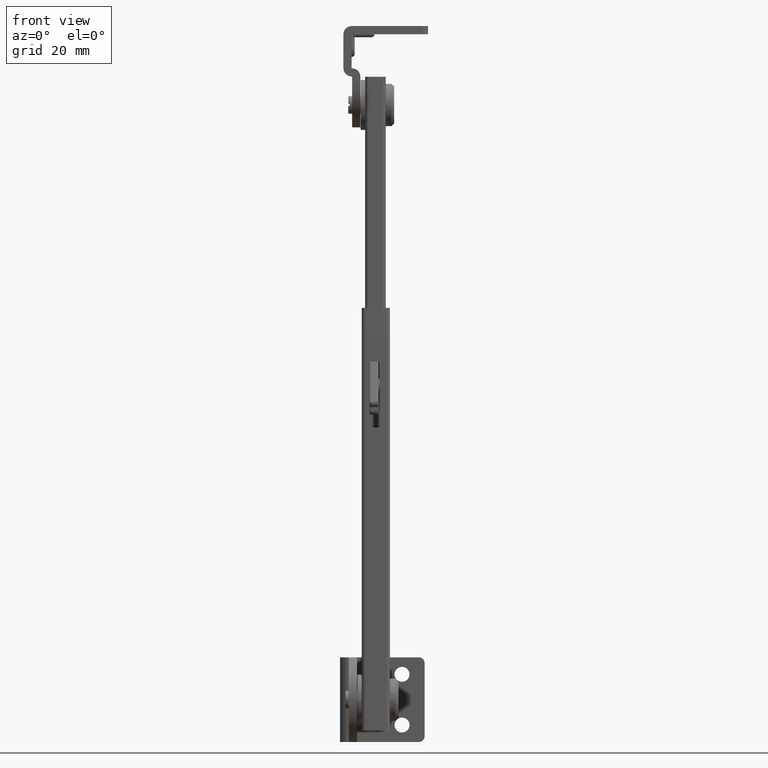
[diagram: clean part render]
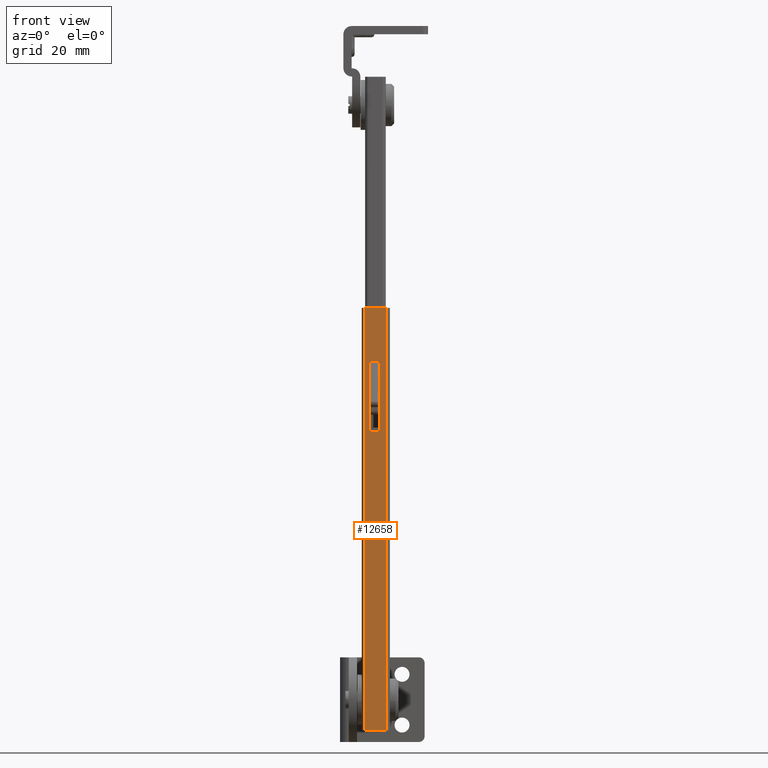
[diagram: same view with one face highlighted and labeled with its STEP entity id]
A machine part, front view. The second image highlights one B-rep face of the part: STEP entity #12658.
In plain terms, the highlighted face is a freeform B-spline surface patch.
Its self-contained STEP definition (entity closure, byte-faithful):
#11919=CARTESIAN_POINT('',(-7.300003000000080,-11.0,96.000000157079597));
#11920=VERTEX_POINT('',#11919);
#11926=CARTESIAN_POINT('',(-6.300003000000091,-11.0,95.0));
#11927=VERTEX_POINT('',#11926);
#11928=CARTESIAN_POINT('',(-7.300003000000078,-11.0,96.000000157079597));
#11929=CARTESIAN_POINT('',(-7.300003065064587,-11.000000000000005,95.585786548698962));
#11930=CARTESIAN_POINT('',(-7.007109836722661,-11.0,95.292893274349481));
#11931=CARTESIAN_POINT('',(-6.714216608380736,-11.000000000000005,95.0));
#11932=CARTESIAN_POINT('',(-6.300003000000091,-11.0,95.0));
#11940=(BOUNDED_CURVE()B_SPLINE_CURVE(2,(#11928,#11929,#11930,#11931,#11932),.UNSPECIFIED.,.F.,.U.)B_SPLINE_CURVE_WITH_KNOTS((3,2,3),(0.0,0.500000000000000,1.0),.UNSPECIFIED.)CURVE()GEOMETRIC_REPRESENTATION_ITEM()RATIONAL_B_SPLINE_CURVE((1.0,0.923879517483346,1.0,0.923879517483346,1.0))REPRESENTATION_ITEM(''));
#11941=EDGE_CURVE('',#11920,#11927,#11940,.T.);
#11981=CARTESIAN_POINT('',(-4.600006052359970,-11.0,95.0));
#11982=VERTEX_POINT('',#11981);
#11983=CARTESIAN_POINT('',(-4.600006052359970,-11.0,95.0));
#11984=CARTESIAN_POINT('',(-6.300003000000091,-11.0,95.0));
#11985=QUASI_UNIFORM_CURVE('',1,(#11983,#11984),.UNSPECIFIED.,.F.,.U.);
#11986=EDGE_CURVE('',#11982,#11927,#11985,.T.);
#12011=CARTESIAN_POINT('',(-3.600006000000095,-11.0,96.0));
#12012=VERTEX_POINT('',#12011);
#12013=CARTESIAN_POINT('',(-4.600006052359970,-11.0,95.0));
#12014=CARTESIAN_POINT('',(-4.185792474651023,-10.999999999999996,94.999999978311834));
#12015=CARTESIAN_POINT('',(-3.892899237325556,-11.0,95.292893200301449));
#12016=CARTESIAN_POINT('',(-3.600006000000091,-10.999999999999996,95.585786422291051));
#12017=CARTESIAN_POINT('',(-3.600006000000091,-11.0,96.0));
#12025=(BOUNDED_CURVE()B_SPLINE_CURVE(2,(#12013,#12014,#12015,#12016,#12017),.UNSPECIFIED.,.F.,.U.)B_SPLINE_CURVE_WITH_KNOTS((3,2,3),(0.0,0.500000000000000,1.0),.UNSPECIFIED.)CURVE()GEOMETRIC_REPRESENTATION_ITEM()RATIONAL_B_SPLINE_CURVE((1.0,0.923879527501972,1.0,0.923879527501972,1.0))REPRESENTATION_ITEM(''));
#12026=EDGE_CURVE('',#11982,#12012,#12025,.T.);
#12066=CARTESIAN_POINT('',(-3.600006000000091,-11.0,119.0));
#12067=VERTEX_POINT('',#12066);
#12068=CARTESIAN_POINT('',(-3.600006000000091,-11.0,119.0));
#12069=CARTESIAN_POINT('',(-3.600006000000095,-11.0,96.0));
#12070=QUASI_UNIFORM_CURVE('',1,(#12068,#12069),.UNSPECIFIED.,.F.,.U.);
#12071=EDGE_CURVE('',#12067,#12012,#12070,.T.);
#12096=CARTESIAN_POINT('',(-4.600006000000090,-11.0,120.0));
#12097=VERTEX_POINT('',#12096);
#12098=CARTESIAN_POINT('',(-3.600006000000091,-11.0,119.0));
#12099=CARTESIAN_POINT('',(-3.600006000000092,-11.0,120.0));
#12100=CARTESIAN_POINT('',(-4.600006000000090,-11.0,120.0));
#12108=(BOUNDED_CURVE()B_SPLINE_CURVE(2,(#12098,#12099,#12100),.UNSPECIFIED.,.F.,.U.)CURVE()GEOMETRIC_REPRESENTATION_ITEM()QUASI_UNIFORM_CURVE()RATIONAL_B_SPLINE_CURVE((1.0,0.707106781186548,1.0))REPRESENTATION_ITEM(''));
#12109=EDGE_CURVE('',#12067,#12097,#12108,.T.);
#12147=CARTESIAN_POINT('',(-6.300003052359970,-11.0,120.0));
#12148=VERTEX_POINT('',#12147);
#12149=CARTESIAN_POINT('',(-6.300003052359970,-11.0,120.0));
#12150=CARTESIAN_POINT('',(-4.600006000000090,-11.0,120.0));
#12151=QUASI_UNIFORM_CURVE('',1,(#12149,#12150),.UNSPECIFIED.,.F.,.U.);
#12152=EDGE_CURVE('',#12148,#12097,#12151,.T.);
#12177=CARTESIAN_POINT('',(-7.300003000000091,-11.0,118.999999912733400));
#12178=VERTEX_POINT('',#12177);
#12179=CARTESIAN_POINT('',(-6.300003052359970,-11.0,120.0));
#12180=CARTESIAN_POINT('',(-6.714216624957005,-10.999999999999998,119.999999978311860));
#12181=CARTESIAN_POINT('',(-7.007109830552050,-11.0,119.707106731821100));
#12182=CARTESIAN_POINT('',(-7.300003036147096,-10.999999999999998,119.414213485330480));
#12183=CARTESIAN_POINT('',(-7.300003000000087,-11.0,118.999999912733400));
#12191=(BOUNDED_CURVE()B_SPLINE_CURVE(2,(#12179,#12180,#12181,#12182,#12183),.UNSPECIFIED.,.F.,.U.)B_SPLINE_CURVE_WITH_KNOTS((3,2,3),(0.0,0.500000000000000,1.0),.UNSPECIFIED.)CURVE()GEOMETRIC_REPRESENTATION_ITEM()RATIONAL_B_SPLINE_CURVE((1.0,0.923879529171731,1.0,0.923879529171731,1.0))REPRESENTATION_ITEM(''));
#12192=EDGE_CURVE('',#12148,#12178,#12191,.T.);
#12230=CARTESIAN_POINT('',(-7.300003000000080,-11.0,96.000000157079597));
#12231=CARTESIAN_POINT('',(-7.300003000000091,-11.0,118.999999912733400));
#12232=QUASI_UNIFORM_CURVE('',1,(#12230,#12231),.UNSPECIFIED.,.F.,.U.);
#12233=EDGE_CURVE('',#11920,#12178,#12232,.T.);
#12244=CARTESIAN_POINT('',(-1.197313720102792,-11.0,139.0));
#12245=VERTEX_POINT('',#12244);
#12246=CARTESIAN_POINT('',(-8.800003062831941,-11.000003000000000,139.0));
#12247=VERTEX_POINT('',#12246);
#12248=CARTESIAN_POINT('',(-1.197313720102792,-11.0,139.0));
#12249=CARTESIAN_POINT('',(-8.800003062831941,-11.000003000000000,139.0));
#12250=QUASI_UNIFORM_CURVE('',1,(#12248,#12249),.UNSPECIFIED.,.F.,.U.);
#12251=EDGE_CURVE('',#12245,#12247,#12250,.T.);
#12370=CARTESIAN_POINT('',(-1.197313720102792,-11.0,-11.0));
#12371=VERTEX_POINT('',#12370);
#12372=CARTESIAN_POINT('',(-8.800003062831941,-11.000003000000000,-11.0));
#12373=VERTEX_POINT('',#12372);
#12374=CARTESIAN_POINT('',(-1.197313720102792,-11.0,-11.0));
#12375=CARTESIAN_POINT('',(-8.800003062831941,-11.000003000000000,-11.0));
#12376=QUASI_UNIFORM_CURVE('',1,(#12374,#12375),.UNSPECIFIED.,.F.,.U.);
#12377=EDGE_CURVE('',#12371,#12373,#12376,.T.);
#12506=CARTESIAN_POINT('',(-1.197313720102792,-11.0,-11.0));
#12507=CARTESIAN_POINT('',(-1.197313720102792,-11.0,139.0));
#12508=QUASI_UNIFORM_CURVE('',1,(#12506,#12507),.UNSPECIFIED.,.F.,.U.);
#12509=EDGE_CURVE('',#12371,#12245,#12508,.T.);
#12599=CARTESIAN_POINT('',(-8.800003062831941,-11.000003000000000,-11.0));
#12600=CARTESIAN_POINT('',(-8.800003062831941,-11.000003000000000,139.0));
#12601=QUASI_UNIFORM_CURVE('',1,(#12599,#12600),.UNSPECIFIED.,.F.,.U.);
#12602=EDGE_CURVE('',#12373,#12247,#12601,.T.);
#12637=CARTESIAN_POINT('',(-9.179757380765775,-11.0,-18.492499709270898));
#12638=CARTESIAN_POINT('',(-9.179757380765775,-11.0,146.492503732584400));
#12639=CARTESIAN_POINT('',(-0.817559198248939,-11.0,-18.492499709270898));
#12640=CARTESIAN_POINT('',(-0.817559198248939,-11.0,146.492503732584400));
#12641=B_SPLINE_SURFACE_WITH_KNOTS('',1,1,((#12637,#12639),(#12638,#12640)),.UNSPECIFIED.,.F.,.F.,.U.,(2,2),(2,2),(0.0,164.985003441855300),(0.0,8.362198182516835),.UNSPECIFIED.);
#12642=ORIENTED_EDGE('',*,*,#12251,.T.);
#12643=ORIENTED_EDGE('',*,*,#12602,.F.);
#12644=ORIENTED_EDGE('',*,*,#12377,.F.);
#12645=ORIENTED_EDGE('',*,*,#12509,.T.);
#12646=EDGE_LOOP('',(#12642,#12643,#12644,#12645));
#12647=FACE_OUTER_BOUND('',#12646,.T.);
#12648=ORIENTED_EDGE('',*,*,#12233,.T.);
#12649=ORIENTED_EDGE('',*,*,#12192,.F.);
#12650=ORIENTED_EDGE('',*,*,#12152,.T.);
#12651=ORIENTED_EDGE('',*,*,#12109,.F.);
#12652=ORIENTED_EDGE('',*,*,#12071,.T.);
#12653=ORIENTED_EDGE('',*,*,#12026,.F.);
#12654=ORIENTED_EDGE('',*,*,#11986,.T.);
#12655=ORIENTED_EDGE('',*,*,#11941,.F.);
#12656=EDGE_LOOP('',(#12648,#12649,#12650,#12651,#12652,#12653,#12654,#12655));
#12657=FACE_BOUND('',#12656,.T.);
#12658=ADVANCED_FACE('',(#12647,#12657),#12641,.F.);